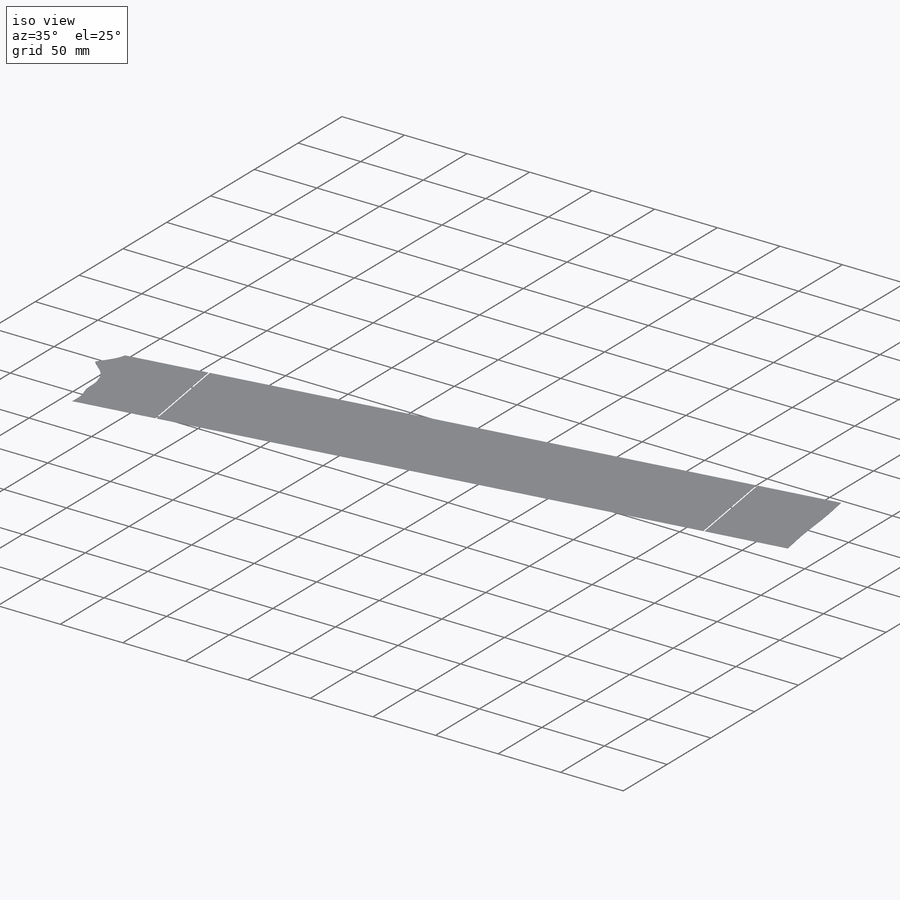
[diagram: iso view]
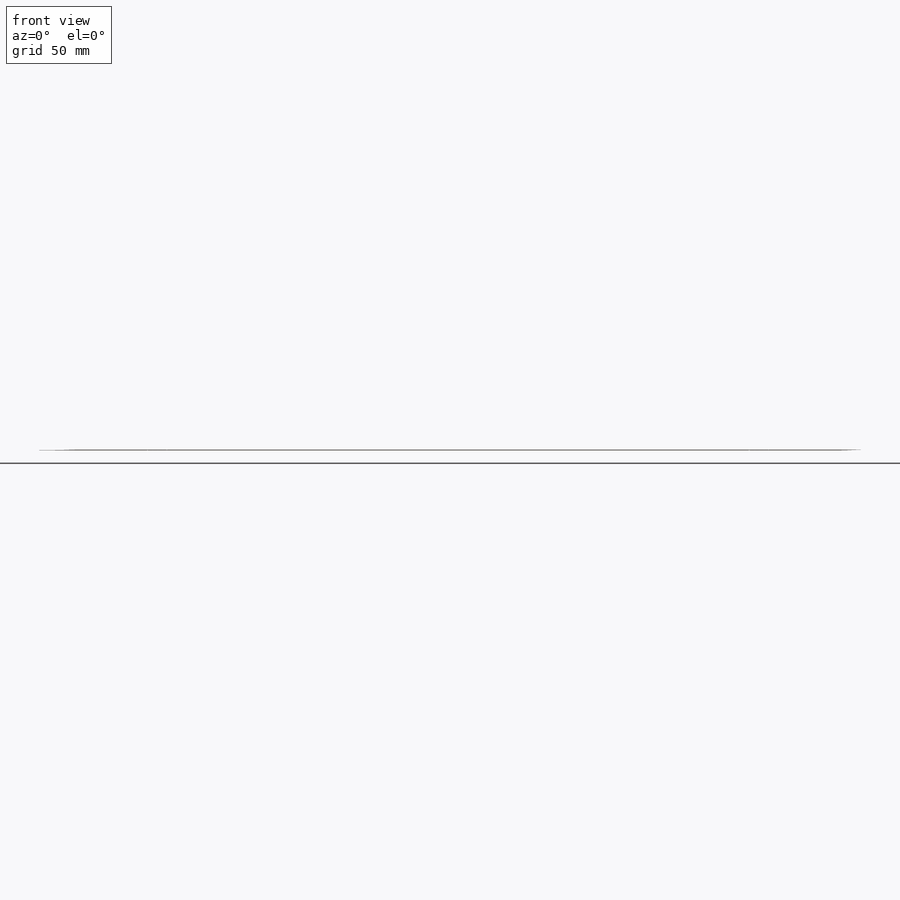
[diagram: front view]
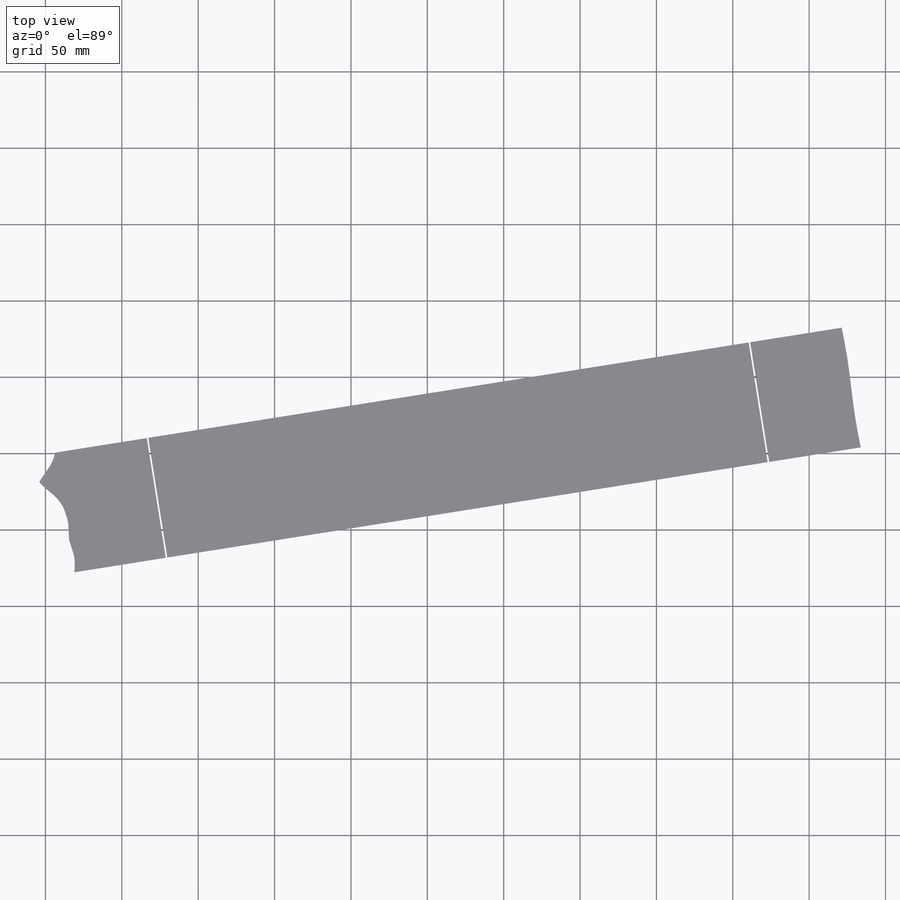
[diagram: top view]
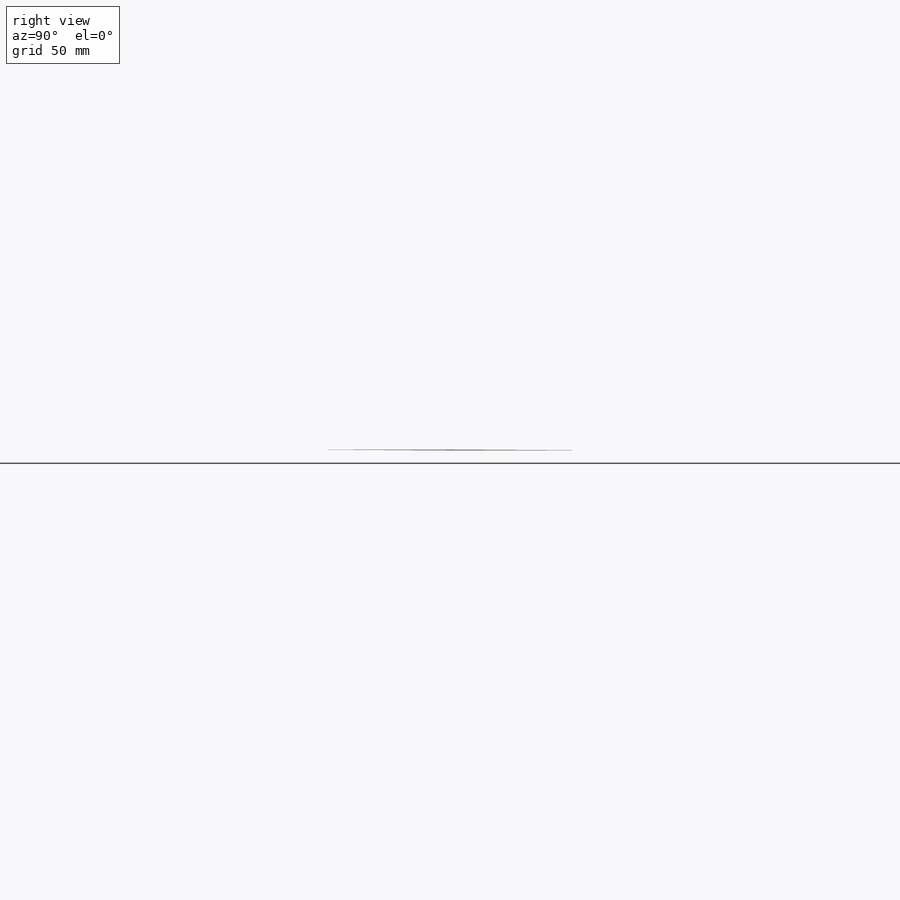
[diagram: right view]
SOLIDWORKS PART (.sldprt)
format: sldprt  version: not decoded by parser v0  size: 228,352 bytes
history: native  units: mm
features: sketch x9, material x1, sheet_metal_op x1, cut_extrude x1 + 3 further entries (+11 scaffold rows collapsed)
feature tree (26):
  scaffold x11  (default folders/planes/origin — collapsed)
  material  "AISI 1020 Steel, Cold Rolled"
  sheet_metal_op  "Sheet-Metal1"  Sheet-Metal2=0 Thickness=0.1mm Sheet-Metal3=0
  sketch  "Sharp-Sketch1"  dims[D1=0.0mm]
  sketch  "Flat-Sketch1"  dims[D1=0.0mm]
  sketch  "Sketch6"  dims[D1=1.0mm D2=400.0mm]
  cut_extrude  "Cut-Extrude1"  Depth=10mm
  "Flat-Pattern1"
  sketch  "Bend-Lines1"
  sketch  "Bounding-Box1"
  "Flat-Pattern2"
  sketch  "Bend-Lines2"
  sketch  "Bounding-Box2"
  "Flat-Pattern3"
  sketch  "Bend-Lines3"
  sketch  "Bounding-Box3"
decode coverage: 5 of 11 modeling features carry decoded parameters; 3 rows unclassified (native names shown)
note: suppression state not decoded; provenance and decode notes live in map.json
